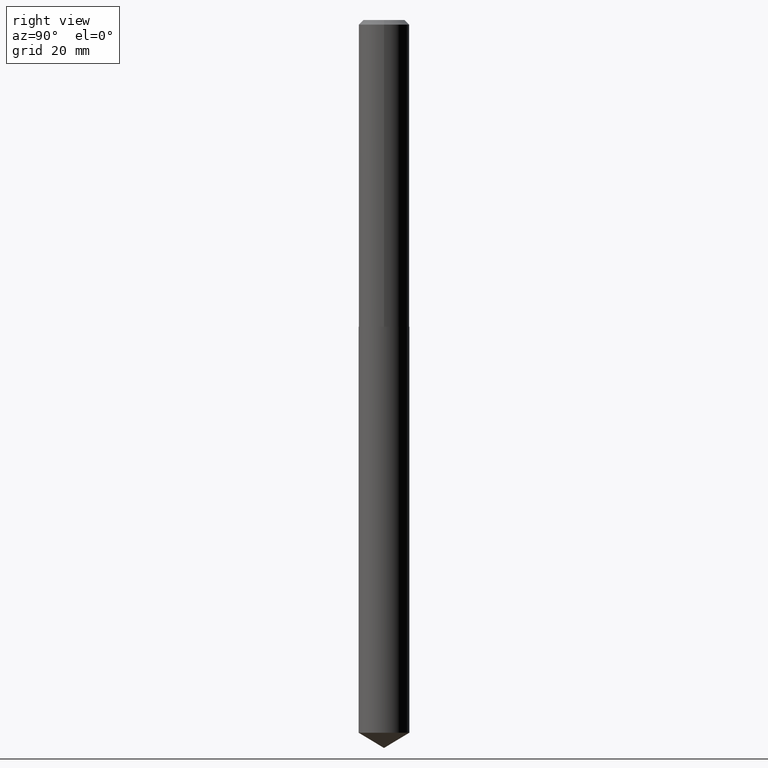
[diagram: clean part render]
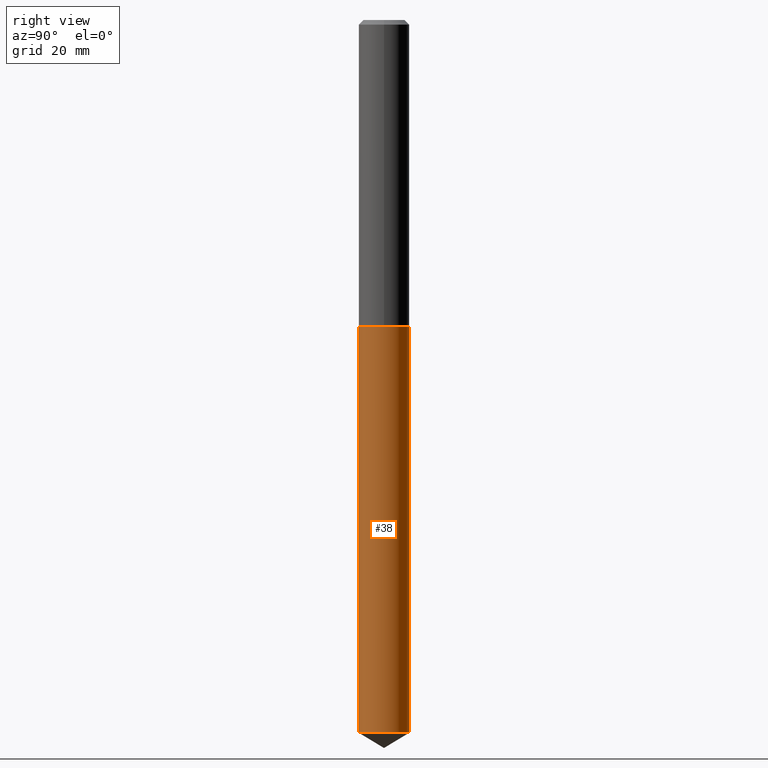
[diagram: same view with one face highlighted and labeled with its STEP entity id]
A machine part, right view. The second image highlights one B-rep face of the part: STEP entity #38.
In plain terms, the highlighted cylindrical surface (edge-blend (fillet) strip) has radius 4.3498 mm, axis along (-0, 0, 1).
Its self-contained STEP definition (entity closure, byte-faithful):
#12 = DIRECTION ( 'NONE',  ( -6.982962677686265922E-15, -1.000000000000000000, 3.190479408658993096E-15 ) ) ;
#23 = DIRECTION ( 'NONE',  ( -6.982962677686265922E-15, -1.000000000000000000, 3.190479408658993096E-15 ) ) ;
#32 = CYLINDRICAL_SURFACE ( 'NONE', #193, 0.1712500000000000133 ) ;
#38 = ADVANCED_FACE ( 'NONE', ( #303 ), #32, .T. ) ;
#77 = EDGE_LOOP ( 'NONE', ( #353, #110, #136, #379 ) ) ;
#80 = VERTEX_POINT ( 'NONE', #366 ) ;
#94 = DIRECTION ( 'NONE',  ( -2.445485009494565078E-29, 3.491458134781809041E-15, 1.000000000000000000 ) ) ;
#110 = ORIENTED_EDGE ( 'NONE', *, *, #129, .T. ) ;
#117 = CARTESIAN_POINT ( 'NONE',  ( 5.071413210266735491E-29, -7.240634000492913769E-15, -2.073799999999999422 ) ) ;
#118 = CARTESIAN_POINT ( 'NONE',  ( 1.216804434989222150E-15, 0.1712499999999927691, -2.073800000000000310 ) ) ;
#121 = DIRECTION ( 'NONE',  ( -2.445485009494564797E-29, 3.491458134781809435E-15, 1.000000000000000000 ) ) ;
#128 = AXIS2_PLACEMENT_3D ( 'NONE', #259, #224, #12 ) ;
#129 = EDGE_CURVE ( 'NONE', #262, #292, #146, .T. ) ;
#135 = CIRCLE ( 'NONE', #128, 0.1712500000000000133 ) ;
#136 = ORIENTED_EDGE ( 'NONE', *, *, #367, .F. ) ;
#141 = EDGE_CURVE ( 'NONE', #80, #142, #207, .T. ) ;
#142 = VERTEX_POINT ( 'NONE', #305 ) ;
#146 = LINE ( 'NONE', #118, #219 ) ;
#160 = CARTESIAN_POINT ( 'NONE',  ( 1.216804434989290189E-15, 0.1712499999999927691, -2.073800000000000310 ) ) ;
#164 = DIRECTION ( 'NONE',  ( -6.982962677686265922E-15, -1.000000000000000000, 3.190479408658993096E-15 ) ) ;
#178 = CARTESIAN_POINT ( 'NONE',  ( -1.195832358553722450E-15, -0.1712500000000072575, -2.073799999999998978 ) ) ;
#193 = AXIS2_PLACEMENT_3D ( 'NONE', #117, #94, #23 ) ;
#197 = CARTESIAN_POINT ( 'NONE',  ( 1.178329777203005104E-28, -1.682329914131435626E-14, -4.818402618991531661 ) ) ;
#207 = LINE ( 'NONE', #178, #348 ) ;
#219 = VECTOR ( 'NONE', #270, 39.37007874015748143 ) ;
#224 = DIRECTION ( 'NONE',  ( -2.445485009494565078E-29, 3.491458134781809041E-15, 1.000000000000000000 ) ) ;
#246 = CARTESIAN_POINT ( 'NONE',  ( 1.216804434989289598E-15, 0.1712499999999831934, -4.818402618991532549 ) ) ;
#259 = CARTESIAN_POINT ( 'NONE',  ( 5.071413210266735491E-29, -7.240634000492913769E-15, -2.073799999999999422 ) ) ;
#262 = VERTEX_POINT ( 'NONE', #246 ) ;
#270 = DIRECTION ( 'NONE',  ( -2.445485009494564797E-29, 3.491458134781809435E-15, 1.000000000000000000 ) ) ;
#277 = CIRCLE ( 'NONE', #302, 0.1712500000000000133 ) ;
#288 = DIRECTION ( 'NONE',  ( -2.445485009494565078E-29, 3.491458134781809041E-15, 1.000000000000000000 ) ) ;
#292 = VERTEX_POINT ( 'NONE', #160 ) ;
#302 = AXIS2_PLACEMENT_3D ( 'NONE', #197, #288, #164 ) ;
#303 = FACE_OUTER_BOUND ( 'NONE', #77, .T. ) ;
#305 = CARTESIAN_POINT ( 'NONE',  ( -1.195832358553722450E-15, -0.1712500000000072575, -2.073799999999998978 ) ) ;
#348 = VECTOR ( 'NONE', #121, 39.37007874015748143 ) ;
#353 = ORIENTED_EDGE ( 'NONE', *, *, #359, .T. ) ;
#359 = EDGE_CURVE ( 'NONE', #80, #262, #277, .T. ) ;
#366 = CARTESIAN_POINT ( 'NONE',  ( -1.195832358553655397E-15, -0.1712500000000168887, -4.818402618991531661 ) ) ;
#367 = EDGE_CURVE ( 'NONE', #142, #292, #135, .T. ) ;
#379 = ORIENTED_EDGE ( 'NONE', *, *, #141, .F. ) ;